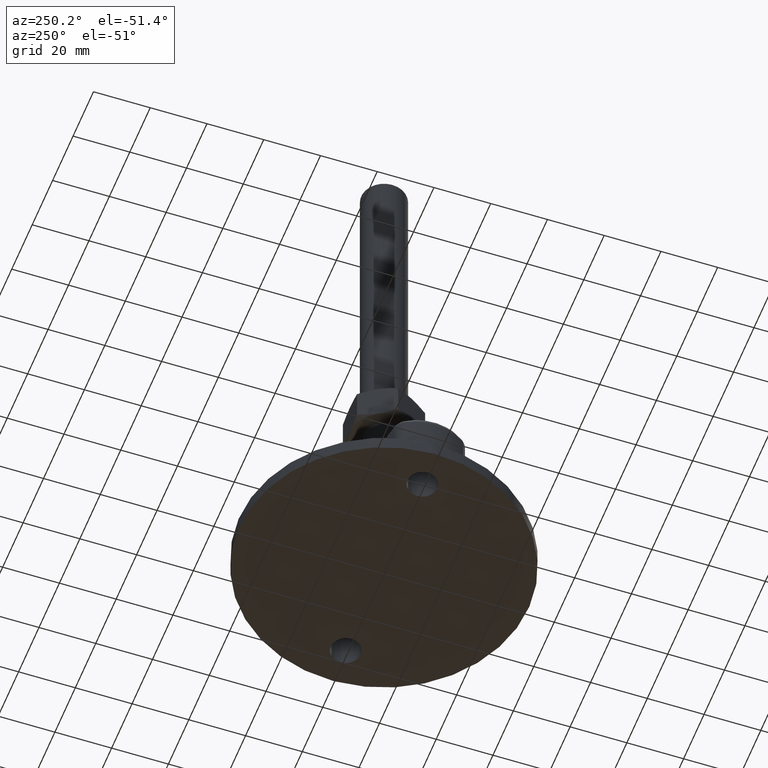
[diagram: clean part render]
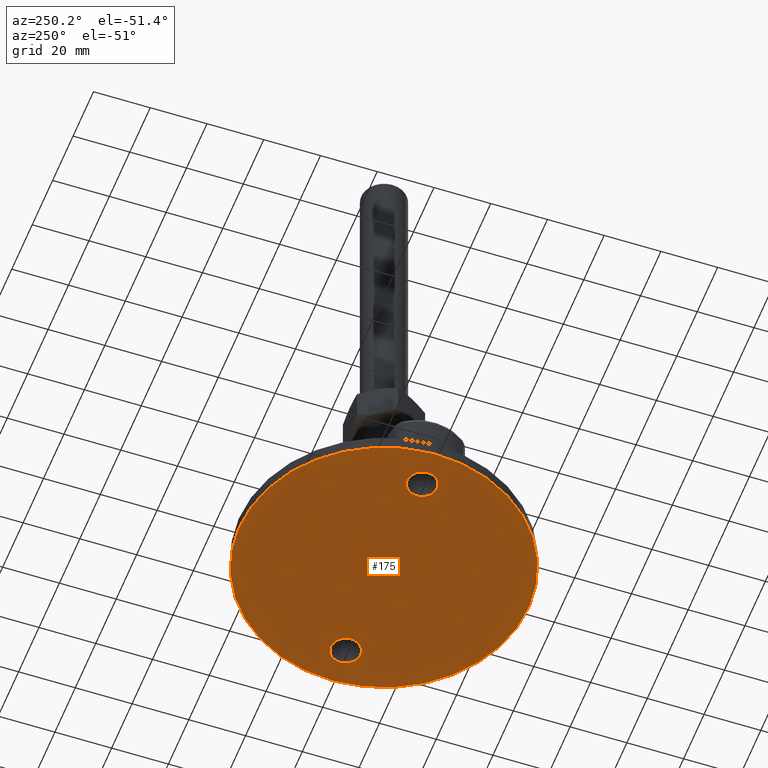
[diagram: same view with one face highlighted and labeled with its STEP entity id]
A machine part, auxiliary view. The second image highlights one B-rep face of the part: STEP entity #175.
In plain terms, the highlighted planar face has unit normal (0, 0, -1).
Its self-contained STEP definition (entity closure, byte-faithful):
#7=CARTESIAN_POINT('',(50.999999999999091,0.0,0.0));
#8=VERTEX_POINT('',#7);
#17=CARTESIAN_POINT('',(-50.980811147480836,1.398890540681350,0.000000034717532));
#18=VERTEX_POINT('',#17);
#19=CARTESIAN_POINT('',(0.0,0.0,0.0));
#20=DIRECTION('',(0.0,-0.000000025809560,1.000000000000000));
#21=DIRECTION('',(1.0,0.0,0.0));
#22=AXIS2_PLACEMENT_3D('',#19,#20,#21);
#23=CIRCLE('',#22,50.999999999999091);
#24=EDGE_CURVE('',#8,#18,#23,.T.);
#49=CARTESIAN_POINT('',(50.980811147480381,-1.398890540694083,-0.000000037490965));
#50=VERTEX_POINT('',#49);
#68=CARTESIAN_POINT('',(-50.999999999999091,1.591616E-010,-1.387217E-009));
#69=VERTEX_POINT('',#68);
#76=CARTESIAN_POINT('',(0.0,0.0,0.0));
#77=DIRECTION('',(0.0,-0.000000025809560,1.000000000000000));
#78=DIRECTION('',(1.0,0.0,0.0));
#79=AXIS2_PLACEMENT_3D('',#76,#77,#78);
#80=CIRCLE('',#79,50.999999999999091);
#81=EDGE_CURVE('',#69,#50,#80,.T.);
#112=CARTESIAN_POINT('',(-51.006850477241187,-51.001099999976759,-0.000001316315947));
#113=DIRECTION('',(6.028169E-020,0.000000025809560,-1.000000000000000));
#114=DIRECTION('',(1.164819E-039,1.000000000000000,0.000000025809560));
#115=AXIS2_PLACEMENT_3D('',#112,#113,#114);
#116=PLANE('',#115);
#117=CARTESIAN_POINT('',(33.089507085860063,-0.453895178344286,-0.000000012614400));
#118=DIRECTION('',(3.303786E-016,-0.000000025809570,1.000000000000000));
#119=DIRECTION('',(0.833045301044058,-0.553204778005771,-0.000000014277978));
#120=AXIS2_PLACEMENT_3D('',#117,#118,#119);
#121=CIRCLE('',#120,17.916243391409303);
#122=EDGE_CURVE('',#50,#8,#121,.T.);
#123=ORIENTED_EDGE('',*,*,#122,.F.);
#124=ORIENTED_EDGE('',*,*,#81,.F.);
#125=CARTESIAN_POINT('',(-33.089507085859623,0.453895178344290,0.000000010814620));
#126=DIRECTION('',(-2.010200E-014,-0.000000025809553,1.000000000000000));
#127=DIRECTION('',(-0.833045301044058,0.553204778005771,0.000000014277951));
#128=AXIS2_PLACEMENT_3D('',#125,#126,#127);
#129=CIRCLE('',#128,17.916243391409303);
#130=EDGE_CURVE('',#18,#69,#129,.T.);
#131=ORIENTED_EDGE('',*,*,#130,.F.);
#132=ORIENTED_EDGE('',*,*,#24,.F.);
#133=EDGE_LOOP('',(#123,#124,#131,#132));
#134=FACE_OUTER_BOUND('',#133,.T.);
#135=CARTESIAN_POINT('',(-42.749999999999432,9.094947E-013,-7.105427E-015));
#136=VERTEX_POINT('',#135);
#137=CARTESIAN_POINT('',(-32.250000000000114,6.429369E-016,1.002483E-013));
#138=VERTEX_POINT('',#137);
#139=CARTESIAN_POINT('',(-37.499999999999773,-2.716464E-031,-3.552714E-015));
#140=DIRECTION('',(-1.977162E-014,-0.000000025809554,1.000000000000000));
#141=DIRECTION('',(-1.0,-1.224642E-016,-1.977162E-014));
#142=AXIS2_PLACEMENT_3D('',#139,#140,#141);
#143=CIRCLE('',#142,5.249999999999659);
#144=EDGE_CURVE('',#136,#138,#143,.T.);
#145=ORIENTED_EDGE('',*,*,#144,.T.);
#146=CARTESIAN_POINT('',(-37.499999999999773,-2.716464E-031,-3.552714E-015));
#147=DIRECTION('',(-1.977162E-014,-0.000000025809554,1.000000000000000));
#148=DIRECTION('',(-1.0,-1.224642E-016,-1.977162E-014));
#149=AXIS2_PLACEMENT_3D('',#146,#147,#148);
#150=CIRCLE('',#149,5.249999999999659);
#151=EDGE_CURVE('',#138,#136,#150,.T.);
#152=ORIENTED_EDGE('',*,*,#151,.T.);
#153=EDGE_LOOP('',(#145,#152));
#154=FACE_BOUND('',#153,.T.);
#155=CARTESIAN_POINT('',(42.749999999999773,0.0,-7.105427E-015));
#156=VERTEX_POINT('',#155);
#157=CARTESIAN_POINT('',(32.250000000000568,0.0,-3.552714E-015));
#158=VERTEX_POINT('',#157);
#159=CARTESIAN_POINT('',(37.500000000000227,0.0,-3.552714E-015));
#160=DIRECTION('',(0.0,-0.000000025809570,1.000000000000000));
#161=DIRECTION('',(1.0,0.0,0.0));
#162=AXIS2_PLACEMENT_3D('',#159,#160,#161);
#163=CIRCLE('',#162,5.249999999999659);
#164=EDGE_CURVE('',#156,#158,#163,.T.);
#165=ORIENTED_EDGE('',*,*,#164,.T.);
#166=CARTESIAN_POINT('',(37.500000000000227,0.0,-3.552714E-015));
#167=DIRECTION('',(0.0,-0.000000025809570,1.000000000000000));
#168=DIRECTION('',(1.0,0.0,0.0));
#169=AXIS2_PLACEMENT_3D('',#166,#167,#168);
#170=CIRCLE('',#169,5.249999999999659);
#171=EDGE_CURVE('',#158,#156,#170,.T.);
#172=ORIENTED_EDGE('',*,*,#171,.T.);
#173=EDGE_LOOP('',(#165,#172));
#174=FACE_BOUND('',#173,.T.);
#175=ADVANCED_FACE('',(#134,#154,#174),#116,.T.);